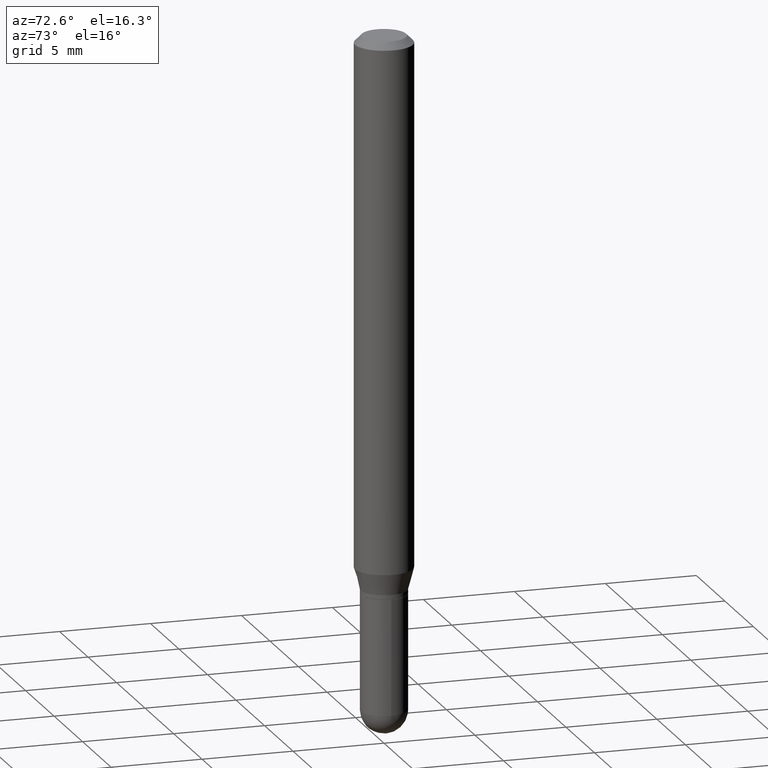
[diagram: clean part render]
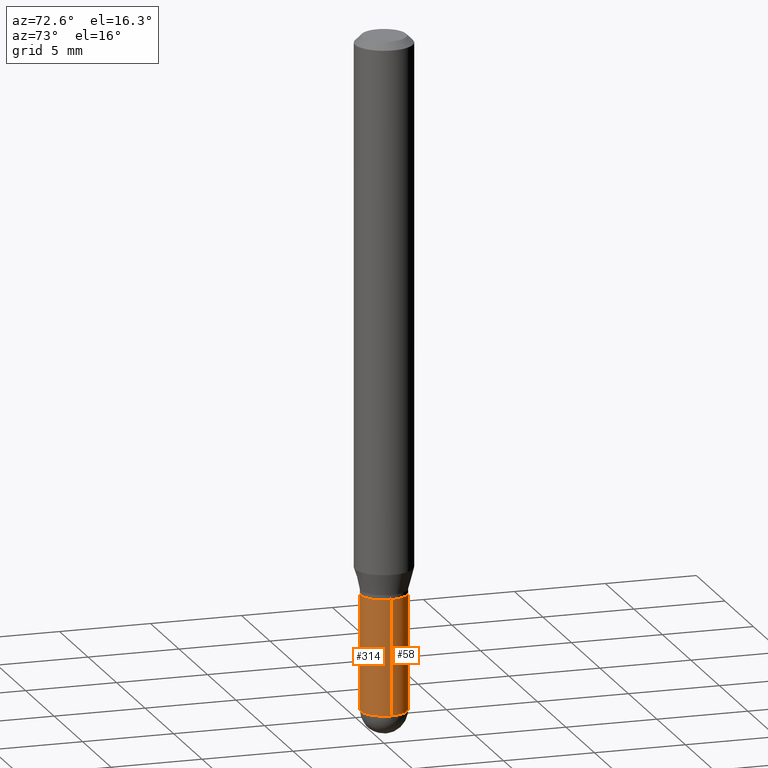
[diagram: same view with one multi-face feature highlighted, each face labeled with its STEP entity id]
A machine part, auxiliary view. The highlighted faces form ONE feature: a constant-radius fillet chain: 2 tangent blend faces with common blend radius 1.27 mm. The faces share edges in the B-rep.
Their STEP definitions:
[1] entity #58 (Cylinder):
#3 = ORIENTED_EDGE ( 'NONE', *, *, #288, .F. ) ;
#6 = CIRCLE ( 'NONE', #475, 0.04999999999999999584 ) ;
#8 = VERTEX_POINT ( 'NONE', #463 ) ;
#35 = DIRECTION ( 'NONE',  ( 1.000000000000000000, -6.982962677686275388E-15, 0.000000000000000000 ) ) ;
#44 = CARTESIAN_POINT ( 'NONE',  ( -0.04999999999999999584, 3.552713678800500634E-16, -2.459467545127452961E-30 ) ) ;
#52 = DIRECTION ( 'NONE',  ( -2.445468806185136597E-29, 3.491481338843145583E-15, 1.000000000000000000 ) ) ;
#58 = ADVANCED_FACE ( 'NONE', ( #289 ), #406, .T. ) ;
#107 = EDGE_CURVE ( 'NONE', #228, #279, #166, .T. ) ;
#120 = VERTEX_POINT ( 'NONE', #224 ) ;
#122 = EDGE_CURVE ( 'NONE', #228, #471, #131, .T. ) ;
#127 = ORIENTED_EDGE ( 'NONE', *, *, #297, .T. ) ;
#131 = LINE ( 'NONE', #450, #308 ) ;
#138 = CARTESIAN_POINT ( 'NONE',  ( 3.545929768968448850E-29, -5.062647941322561509E-15, -1.450000000000000178 ) ) ;
#151 = DIRECTION ( 'NONE',  ( 1.000000000000000000, -6.982962677686274599E-15, 0.000000000000000000 ) ) ;
#154 = CARTESIAN_POINT ( 'NONE',  ( 3.552713678800855128E-16, 0.04999999999999494432, -1.450000000000000400 ) ) ;
#166 = CIRCLE ( 'NONE', #354, 0.04999999999999999584 ) ;
#167 = LINE ( 'NONE', #44, #347 ) ;
#172 = DIRECTION ( 'NONE',  ( 1.000000000000000000, -6.982962677686275388E-15, 0.000000000000000000 ) ) ;
#176 = ORIENTED_EDGE ( 'NONE', *, *, #479, .T. ) ;
#207 = CARTESIAN_POINT ( 'NONE',  ( 0.04999999999999999584, -4.975360907851482386E-15, -1.450000000000000178 ) ) ;
#208 = DIRECTION ( 'NONE',  ( -2.445468806185136597E-29, 3.491481338843145583E-15, 1.000000000000000000 ) ) ;
#224 = CARTESIAN_POINT ( 'NONE',  ( -0.04999999999999999584, -4.270941406087117853E-15, -1.450000000000000178 ) ) ;
#228 = VERTEX_POINT ( 'NONE', #207 ) ;
#230 = AXIS2_PLACEMENT_3D ( 'NONE', #240, #509, #151 ) ;
#232 = EDGE_LOOP ( 'NONE', ( #127, #176, #3, #319, #499 ) ) ;
#240 = CARTESIAN_POINT ( 'NONE',  ( 2.934562567422164701E-29, -4.189777606611775804E-15, -1.200000000000000178 ) ) ;
#253 = CARTESIAN_POINT ( 'NONE',  ( 0.05000000000000000278, -4.538925740496089139E-15, -1.200000000000000178 ) ) ;
#257 = DIRECTION ( 'NONE',  ( -2.445468806185136877E-29, 3.491481338843145188E-15, 1.000000000000000000 ) ) ;
#277 = CARTESIAN_POINT ( 'NONE',  ( 3.545929768968448850E-29, -5.062647941322561509E-15, -1.450000000000000178 ) ) ;
#279 = VERTEX_POINT ( 'NONE', #154 ) ;
#288 = EDGE_CURVE ( 'NONE', #471, #8, #428, .T. ) ;
#289 = FACE_OUTER_BOUND ( 'NONE', #232, .T. ) ;
#297 = EDGE_CURVE ( 'NONE', #279, #120, #6, .T. ) ;
#308 = VECTOR ( 'NONE', #257, 39.37007874015748143 ) ;
#319 = ORIENTED_EDGE ( 'NONE', *, *, #122, .F. ) ;
#328 = DIRECTION ( 'NONE',  ( -2.445468806185136877E-29, 3.491481338843145188E-15, 1.000000000000000000 ) ) ;
#347 = VECTOR ( 'NONE', #328, 39.37007874015748143 ) ;
#354 = AXIS2_PLACEMENT_3D ( 'NONE', #138, #52, #172 ) ;
#357 = DIRECTION ( 'NONE',  ( -2.445468806185136597E-29, 3.491481338843145583E-15, 1.000000000000000000 ) ) ;
#371 = DIRECTION ( 'NONE',  ( 1.000000000000000000, -6.982962677686265922E-15, 4.876176775795936353E-29 ) ) ;
#406 = CYLINDRICAL_SURFACE ( 'NONE', #462, 0.04999999999999999584 ) ;
#428 = CIRCLE ( 'NONE', #230, 0.05000000000000000278 ) ;
#443 = CARTESIAN_POINT ( 'NONE',  ( 0.000000000000000000, 0.000000000000000000, 0.000000000000000000 ) ) ;
#450 = CARTESIAN_POINT ( 'NONE',  ( 0.04999999999999999584, -3.491481338843132862E-16, 2.438088387897967896E-30 ) ) ;
#462 = AXIS2_PLACEMENT_3D ( 'NONE', #443, #208, #371 ) ;
#463 = CARTESIAN_POINT ( 'NONE',  ( -0.05000000000000000278, -4.270941406087117853E-15, -1.200000000000000178 ) ) ;
#471 = VERTEX_POINT ( 'NONE', #253 ) ;
#475 = AXIS2_PLACEMENT_3D ( 'NONE', #277, #357, #35 ) ;
#479 = EDGE_CURVE ( 'NONE', #120, #8, #167, .T. ) ;
#499 = ORIENTED_EDGE ( 'NONE', *, *, #107, .T. ) ;
#509 = DIRECTION ( 'NONE',  ( -2.445468806185136597E-29, 3.491481338843145583E-15, 1.000000000000000000 ) ) ;
[2] entity #314 (Cylinder):
#8 = VERTEX_POINT ( 'NONE', #463 ) ;
#15 = CIRCLE ( 'NONE', #54, 0.04999999999999999584 ) ;
#20 = DIRECTION ( 'NONE',  ( 1.000000000000000000, -6.982962677686275388E-15, 0.000000000000000000 ) ) ;
#44 = CARTESIAN_POINT ( 'NONE',  ( -0.04999999999999999584, 3.552713678800500634E-16, -2.459467545127452961E-30 ) ) ;
#54 = AXIS2_PLACEMENT_3D ( 'NONE', #359, #324, #330 ) ;
#68 = CIRCLE ( 'NONE', #402, 0.04999999999999999584 ) ;
#74 = ORIENTED_EDGE ( 'NONE', *, *, #479, .F. ) ;
#78 = CIRCLE ( 'NONE', #140, 0.05000000000000000278 ) ;
#83 = CARTESIAN_POINT ( 'NONE',  ( 3.545929768968448850E-29, -5.062647941322561509E-15, -1.450000000000000178 ) ) ;
#113 = EDGE_CURVE ( 'NONE', #120, #407, #68, .T. ) ;
#116 = DIRECTION ( 'NONE',  ( 1.000000000000000000, -6.982962677686274599E-15, 0.000000000000000000 ) ) ;
#120 = VERTEX_POINT ( 'NONE', #224 ) ;
#122 = EDGE_CURVE ( 'NONE', #228, #471, #131, .T. ) ;
#131 = LINE ( 'NONE', #450, #308 ) ;
#140 = AXIS2_PLACEMENT_3D ( 'NONE', #315, #477, #116 ) ;
#167 = LINE ( 'NONE', #44, #347 ) ;
#187 = FACE_OUTER_BOUND ( 'NONE', #339, .T. ) ;
#197 = DIRECTION ( 'NONE',  ( -2.445468806185136597E-29, 3.491481338843145583E-15, 1.000000000000000000 ) ) ;
#207 = CARTESIAN_POINT ( 'NONE',  ( 0.04999999999999999584, -4.975360907851482386E-15, -1.450000000000000178 ) ) ;
#217 = EDGE_CURVE ( 'NONE', #407, #228, #15, .T. ) ;
#224 = CARTESIAN_POINT ( 'NONE',  ( -0.04999999999999999584, -4.270941406087117853E-15, -1.450000000000000178 ) ) ;
#228 = VERTEX_POINT ( 'NONE', #207 ) ;
#253 = CARTESIAN_POINT ( 'NONE',  ( 0.05000000000000000278, -4.538925740496089139E-15, -1.200000000000000178 ) ) ;
#257 = DIRECTION ( 'NONE',  ( -2.445468806185136877E-29, 3.491481338843145188E-15, 1.000000000000000000 ) ) ;
#290 = CARTESIAN_POINT ( 'NONE',  ( -3.491481338842778368E-16, -0.05000000000000506817, -1.449999999999999734 ) ) ;
#306 = ORIENTED_EDGE ( 'NONE', *, *, #329, .F. ) ;
#308 = VECTOR ( 'NONE', #257, 39.37007874015748143 ) ;
#314 = ADVANCED_FACE ( 'NONE', ( #187 ), #399, .T. ) ;
#315 = CARTESIAN_POINT ( 'NONE',  ( 2.934562567422164701E-29, -4.189777606611775804E-15, -1.200000000000000178 ) ) ;
#324 = DIRECTION ( 'NONE',  ( -2.445468806185136597E-29, 3.491481338843145583E-15, 1.000000000000000000 ) ) ;
#328 = DIRECTION ( 'NONE',  ( -2.445468806185136877E-29, 3.491481338843145188E-15, 1.000000000000000000 ) ) ;
#329 = EDGE_CURVE ( 'NONE', #8, #471, #78, .T. ) ;
#330 = DIRECTION ( 'NONE',  ( 1.000000000000000000, -6.982962677686275388E-15, 0.000000000000000000 ) ) ;
#336 = DIRECTION ( 'NONE',  ( -2.445468806185136597E-29, 3.491481338843145583E-15, 1.000000000000000000 ) ) ;
#339 = EDGE_LOOP ( 'NONE', ( #74, #500, #457, #345, #306 ) ) ;
#345 = ORIENTED_EDGE ( 'NONE', *, *, #122, .T. ) ;
#347 = VECTOR ( 'NONE', #328, 39.37007874015748143 ) ;
#353 = DIRECTION ( 'NONE',  ( 1.000000000000000000, -6.982962677686265922E-15, 4.876176775795936353E-29 ) ) ;
#359 = CARTESIAN_POINT ( 'NONE',  ( 3.545929768968448850E-29, -5.062647941322561509E-15, -1.450000000000000178 ) ) ;
#364 = AXIS2_PLACEMENT_3D ( 'NONE', #483, #197, #353 ) ;
#399 = CYLINDRICAL_SURFACE ( 'NONE', #364, 0.04999999999999999584 ) ;
#402 = AXIS2_PLACEMENT_3D ( 'NONE', #83, #336, #20 ) ;
#407 = VERTEX_POINT ( 'NONE', #290 ) ;
#450 = CARTESIAN_POINT ( 'NONE',  ( 0.04999999999999999584, -3.491481338843132862E-16, 2.438088387897967896E-30 ) ) ;
#457 = ORIENTED_EDGE ( 'NONE', *, *, #217, .T. ) ;
#463 = CARTESIAN_POINT ( 'NONE',  ( -0.05000000000000000278, -4.270941406087117853E-15, -1.200000000000000178 ) ) ;
#471 = VERTEX_POINT ( 'NONE', #253 ) ;
#477 = DIRECTION ( 'NONE',  ( -2.445468806185136597E-29, 3.491481338843145583E-15, 1.000000000000000000 ) ) ;
#479 = EDGE_CURVE ( 'NONE', #120, #8, #167, .T. ) ;
#483 = CARTESIAN_POINT ( 'NONE',  ( 0.000000000000000000, 0.000000000000000000, 0.000000000000000000 ) ) ;
#500 = ORIENTED_EDGE ( 'NONE', *, *, #113, .T. ) ;